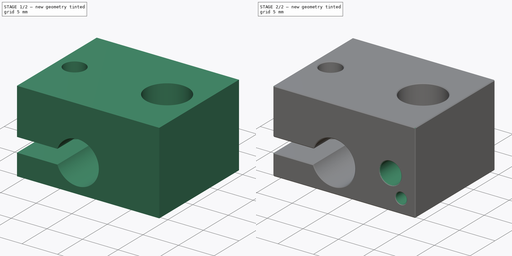
[diagram: build sequence overview — one tinted view per stage of 2, left to right]
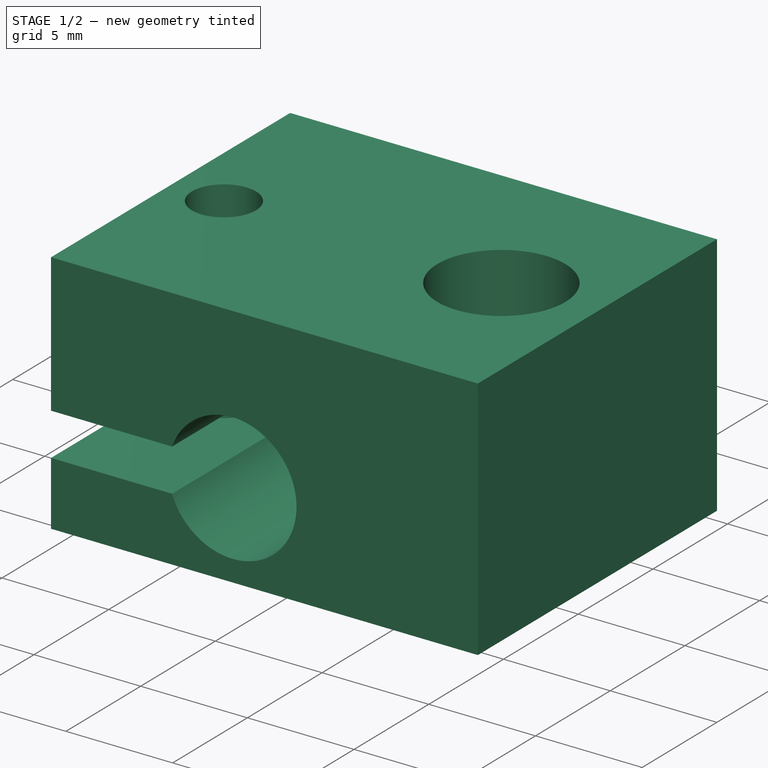
[diagram: stage 1 of 2 — iso view after this stage's code; geometry added in this stage tinted green]
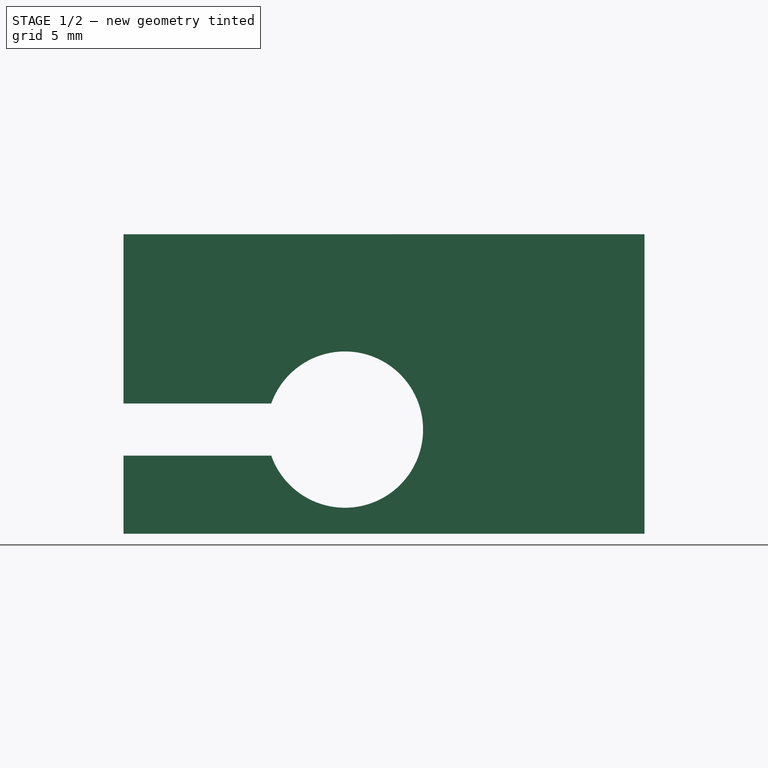
[diagram: stage 1 of 2 — front view after this stage's code; geometry added in this stage tinted green]
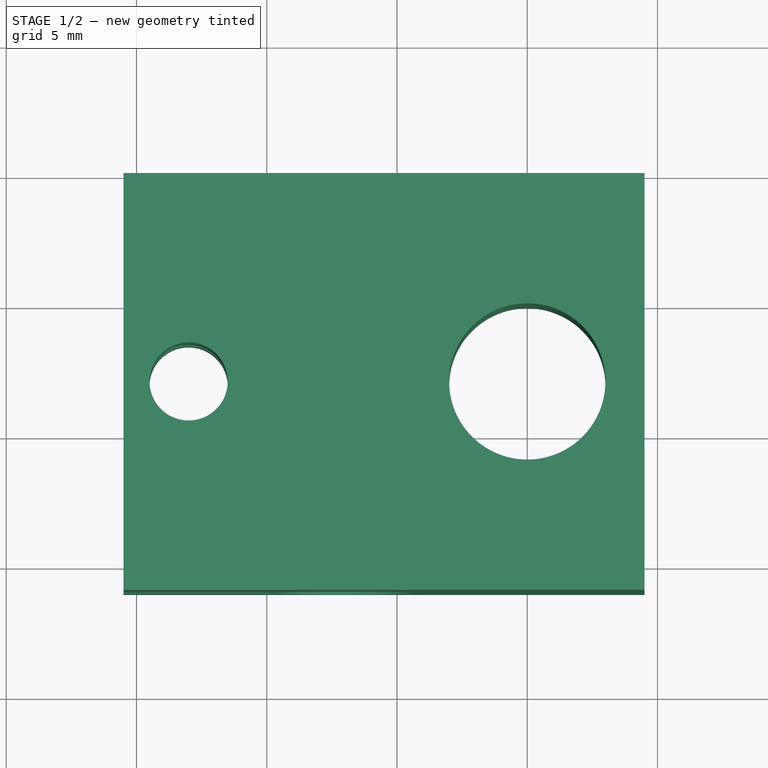
[diagram: stage 1 of 2 — top view after this stage's code; geometry added in this stage tinted green]
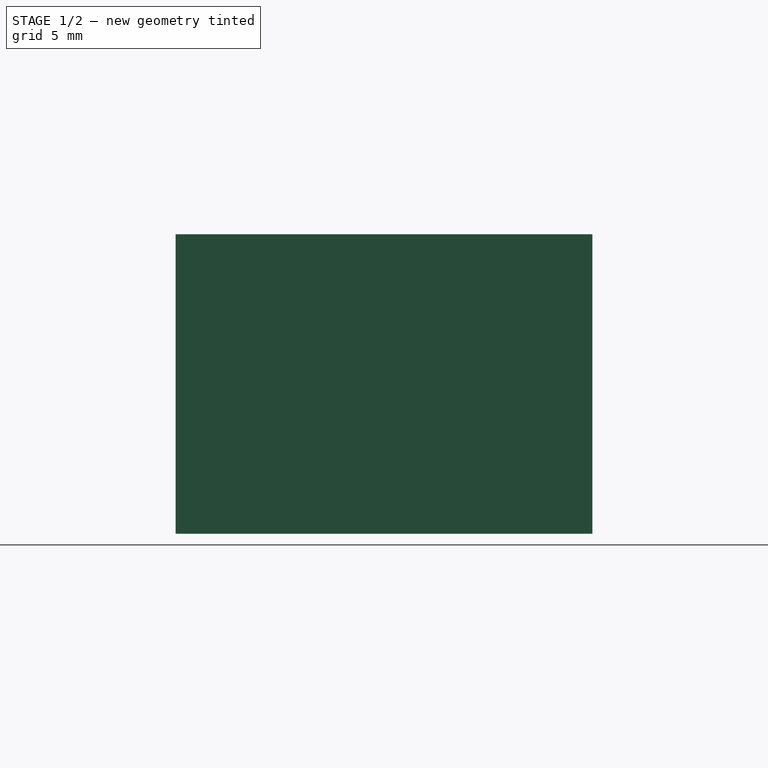
[diagram: stage 1 of 2 — right view after this stage's code; geometry added in this stage tinted green]
FCSTD DOCUMENT  (FreeCAD 0.15R4671 (Git))
Label: bloque
License: CreativeCommons Attribution-ShareAlike
LicenseURL: http://creativecommons.org/licenses/by-sa/4.0/
objects: Sketcher::SketchObject×3, PartDesign::Pocket×2, PartDesign::Pad×1, Part::Chamfer×1, Part::Feature×1
note: 11 computed .brp shape members not serialized (recipe doc carries the construction recipe); baked Part::Feature solids carry a one-line shape summary decoded from their .brp

FEATURE [Sketcher::SketchObject] Sketch
  Placement = pos=(0,0,0) rot=(1,0,0;1.5708rad)
  sketch-geometry (8):
    g0: LineSegment StartX=-15.5 StartY=5 StartZ=0 EndX=-15.5 EndY=11.5 EndZ=0
    g1: LineSegment StartX=-15.5 StartY=11.5 StartZ=0 EndX=4.5 EndY=11.5 EndZ=0
    g2: LineSegment StartX=4.5 StartY=11.5 StartZ=0 EndX=4.5 EndY=0 EndZ=0
    g3: LineSegment StartX=4.5 StartY=0 StartZ=0 EndX=-15.5 EndY=0 EndZ=0
    g4: LineSegment StartX=-15.5 StartY=0 StartZ=0 EndX=-15.5 EndY=3 EndZ=0
    g5: LineSegment StartX=-15.5 StartY=3 StartZ=0 EndX=-9.82843 EndY=3 EndZ=0
    g6: LineSegment StartX=-15.5 StartY=5 StartZ=0 EndX=-9.82843 EndY=5 EndZ=0
    g7: ArcOfCircle CenterX=-7 CenterY=4 CenterZ=0 NormalX=0 NormalY=0 NormalZ=1 Radius=3 StartAngle=3.48143 EndAngle=9.08494
  constraints (25):
    c: Vertical(g0)
    c: Coincident(g0,g1)
    c: Horizontal(g1)
    c: Coincident(g1,g2)
    c: Vertical(g2)
    c: Coincident(g2,g3)
    c: Horizontal(g3)
    c: Coincident(g3,g4)
    c: Vertical(g4)
    c: Coincident(g4,g5)
    c: Horizontal(g5)
    c: Coincident(g6,g0)
    c: Horizontal(g6)
    c: Coincident(g7,g6)
    c: Coincident(g7,g5)
    c: DistanceX(g3,g2) = 20
    c: Equal(g3,g1)
    c: Radius(g7) = 3
    c: DistanceY(g1,g2) = -11.5
    c: DistanceY(g7,g3) = -4
    c: DistanceX(g7,g2) = 11.5
    c: DistanceX(g-1,g2) = 4.5
    c: Equal(g6,g5)
    c: DistanceY(g4,g0) = 2
    c: PointOnObject(g2,g-1)
FEATURE [PartDesign::Pad] Pad
  Length = 16
  Length2 = 100
  Placement = pos=(0,0,0) rot=(1,0,0;1.5708rad)
  Sketch = -> Sketch
  Type = 0
FEATURE [Sketcher::SketchObject] Sketch001
  ExternalGeometry = -> [Pad]
  Placement = pos=(0,0,11.5) rot=(0,0,1;3.14159rad)
  Support = -> Pad [Face2]
  sketch-geometry (2):
    g0: Circle CenterX=0 CenterY=8 CenterZ=0 NormalX=0 NormalY=0 NormalZ=1 Radius=3
    g1: Circle CenterX=13 CenterY=8 CenterZ=0 NormalX=0 NormalY=0 NormalZ=1 Radius=1.5
  constraints (6):
    c: Radius(g1) = 1.5
    c: Radius(g0) = 3
    c: DistanceX(g-3,g0) = 4.5
    c: DistanceY(g0,g-3) = 8
    c: DistanceY(g1,g-3) = 8
    c: DistanceX(g1,g-3) = -17.5
FEATURE [PartDesign::Pocket] Pocket
  Length = 5
  Placement = pos=(0,0,0) rot=(1,0,0;1.5708rad)
  Sketch = -> Sketch001
  Type = 1
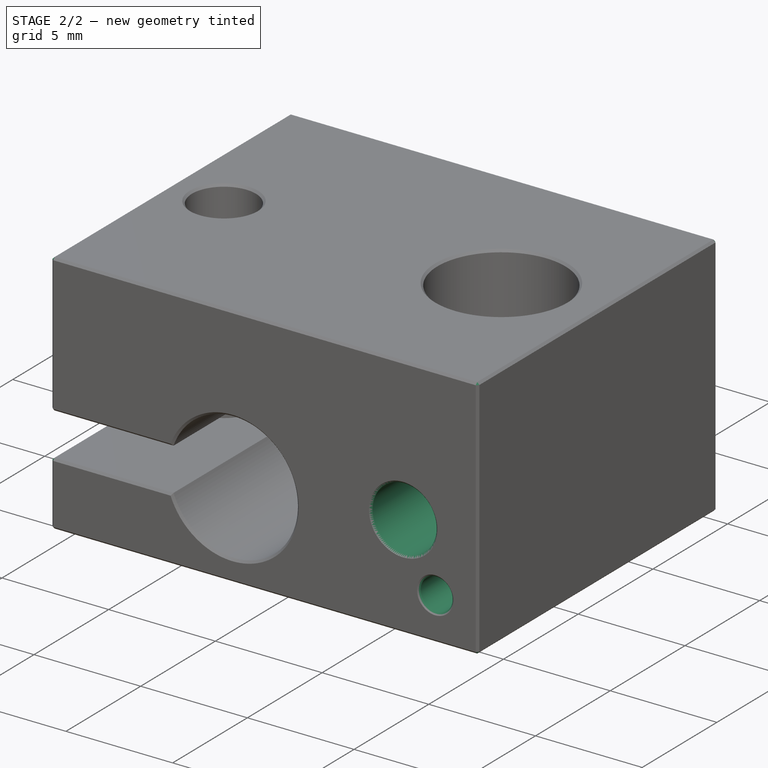
[diagram: stage 2 of 2 — iso view after this stage's code; geometry added in this stage tinted green]
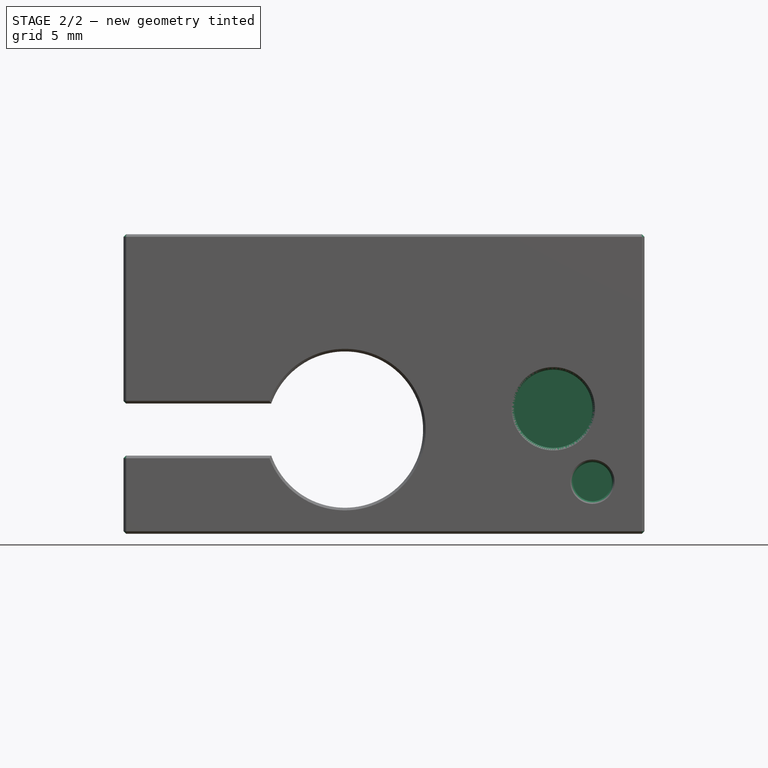
[diagram: stage 2 of 2 — front view after this stage's code; geometry added in this stage tinted green]
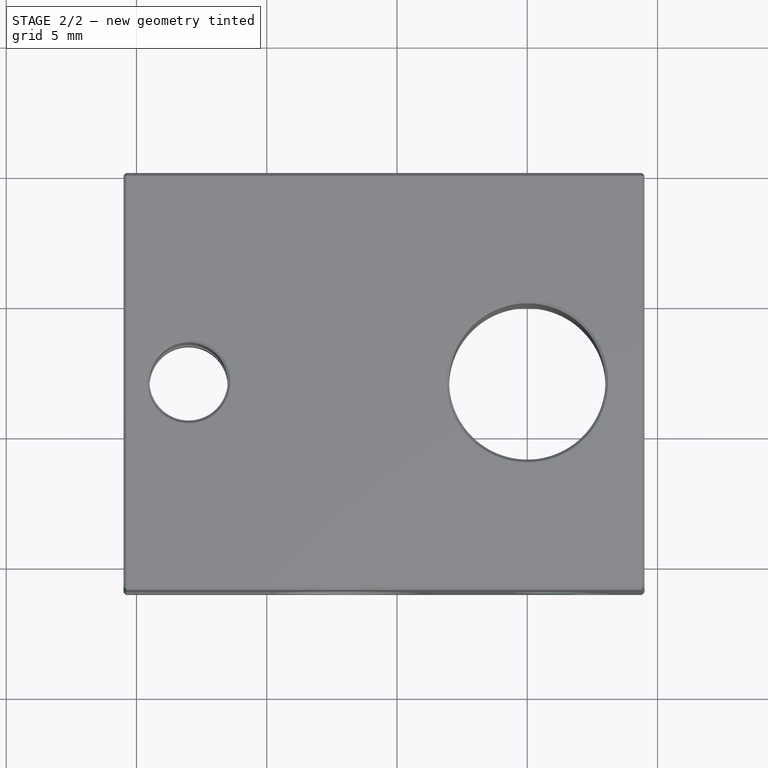
[diagram: stage 2 of 2 — top view after this stage's code; geometry added in this stage tinted green]
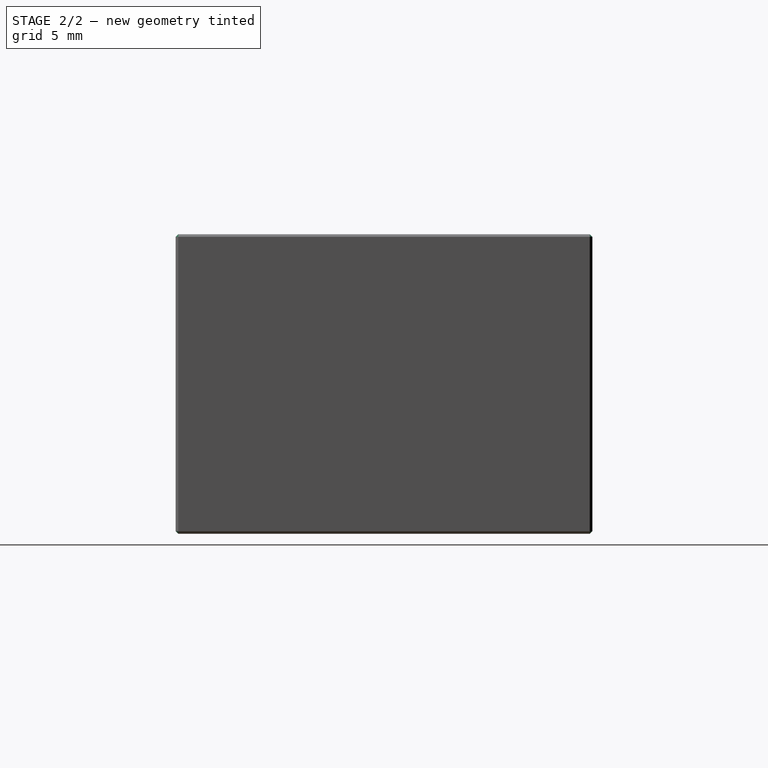
[diagram: stage 2 of 2 — right view after this stage's code; geometry added in this stage tinted green]
FEATURE [Sketcher::SketchObject] Sketch002
  ExternalGeometry = -> [Pocket]
  Placement = pos=(0,-16,0) rot=(1,0,0;1.5708rad)
  Support = -> Pocket [Face5]
  sketch-geometry (2):
    g0: Circle CenterX=1 CenterY=4.8 CenterZ=0 NormalX=0 NormalY=0 NormalZ=1 Radius=1.5
    g1: Circle CenterX=2.5 CenterY=2 CenterZ=0 NormalX=0 NormalY=0 NormalZ=1 Radius=0.75
  constraints (6):
    c: Radius(g0) = 1.5
    c: Radius(g1) = 0.75
    c: DistanceY(g-3,g1) = 2
    c: DistanceX(g1,g-3) = 2
    c: DistanceY(g0,g-3) = -4.8
    c: DistanceX(g0,g-3) = 3.5
FEATURE [PartDesign::Pocket] Pocket001
  Length = 3.5
  Placement = pos=(0,0,0) rot=(1,0,0;1.5708rad)
  Sketch = -> Sketch002
  Type = 0
FEATURE [Part::Chamfer] Chamfer
  Base = -> Pocket001
  Edges = 28 edges r=0.1: [Edge1,Edge2,Edge3,Edge4,Edge5,Edge6,Edge9,Edge10,Edge11,Edge12,Edge13,Edge14,Edge15,Edge16,Edge17,Edge18,Edge19,Edge20,Edge21,Edge22,Edge23,Edge24,Edge25,Edge28,Edge30,Edge31,Edge32,Edge33]
FEATURE [Part::Feature] Chamfer001  label="bloque"
  shape: bbox 20 x 16 x 11.5 mm, 57 faces (baked)
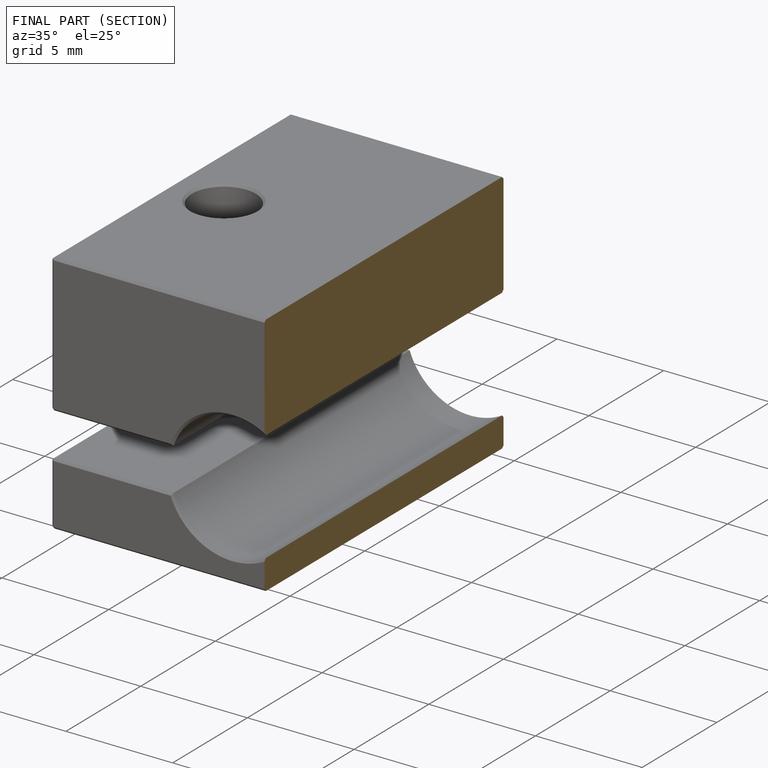
[diagram: finished part — half-section view (interior)]
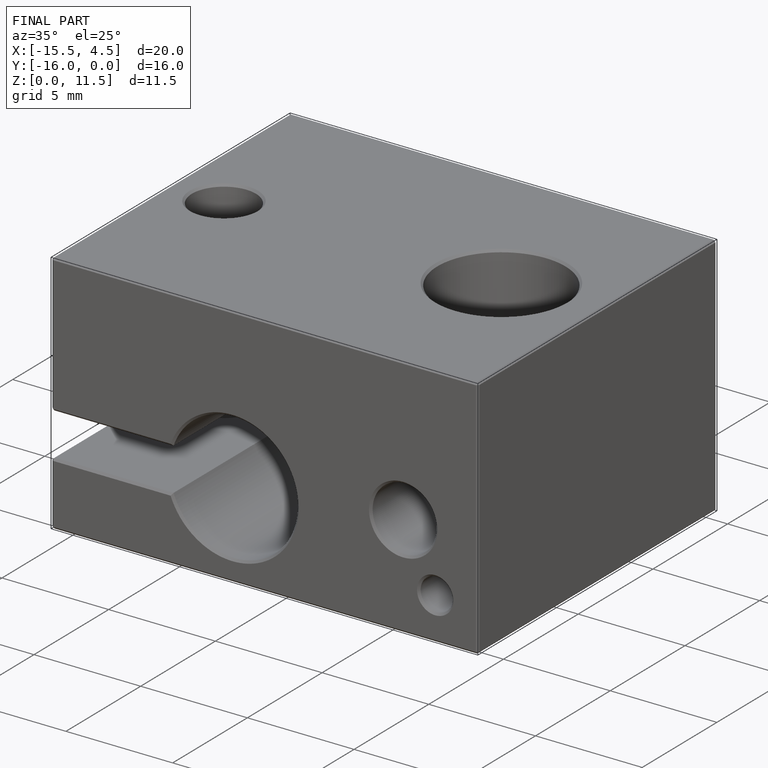
[diagram: finished part — iso view with bounding-box wireframe]
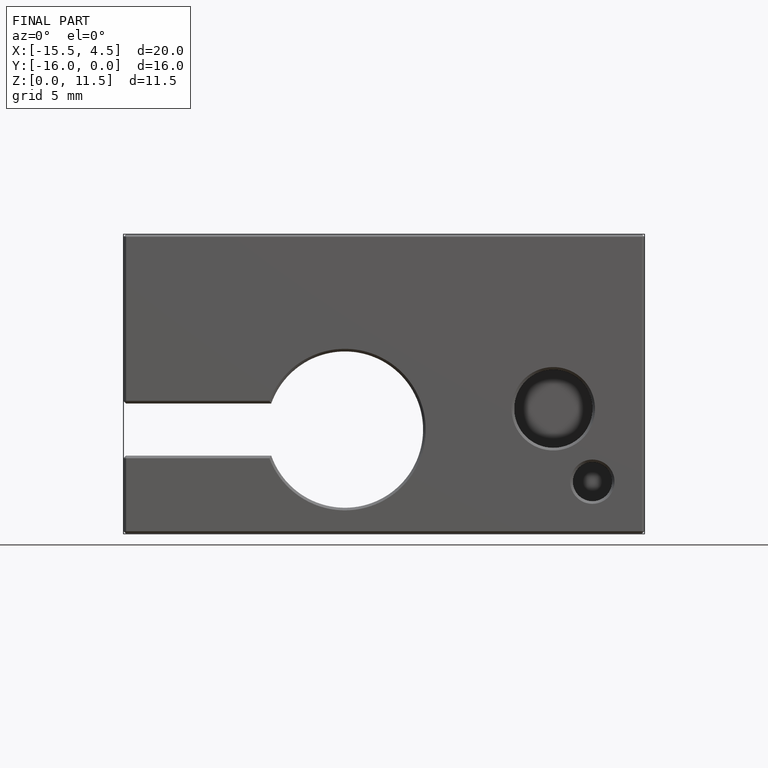
[diagram: finished part — front view with bounding-box wireframe]
